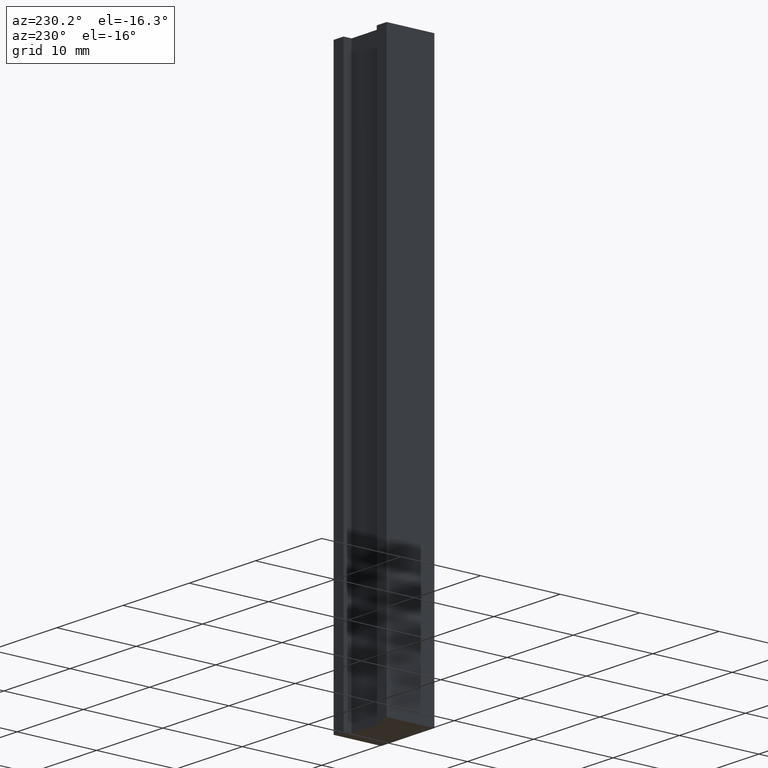
[diagram: clean part render]
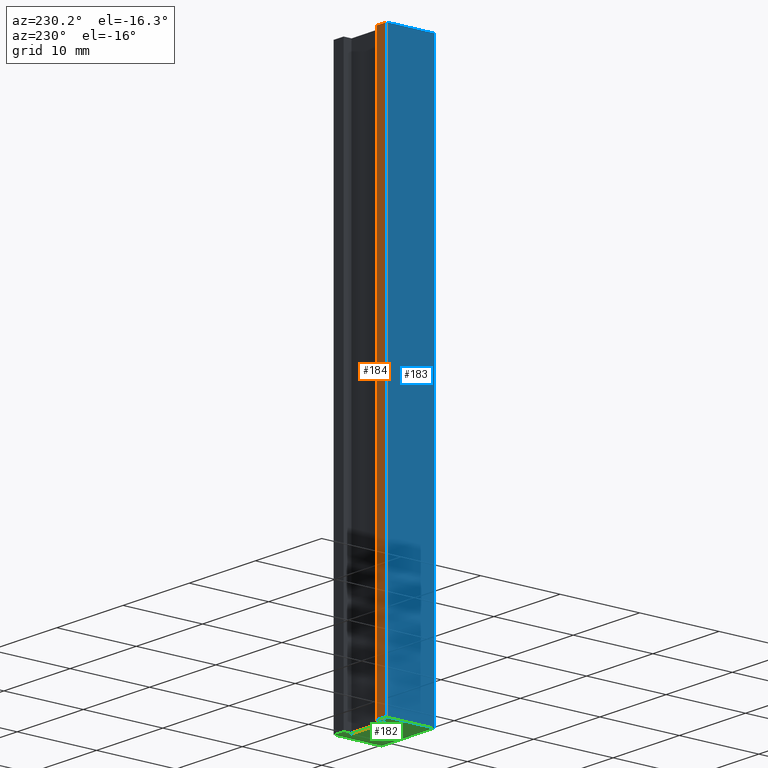
[diagram: same view with three faces highlighted in distinct colors, each labeled with its STEP entity id]
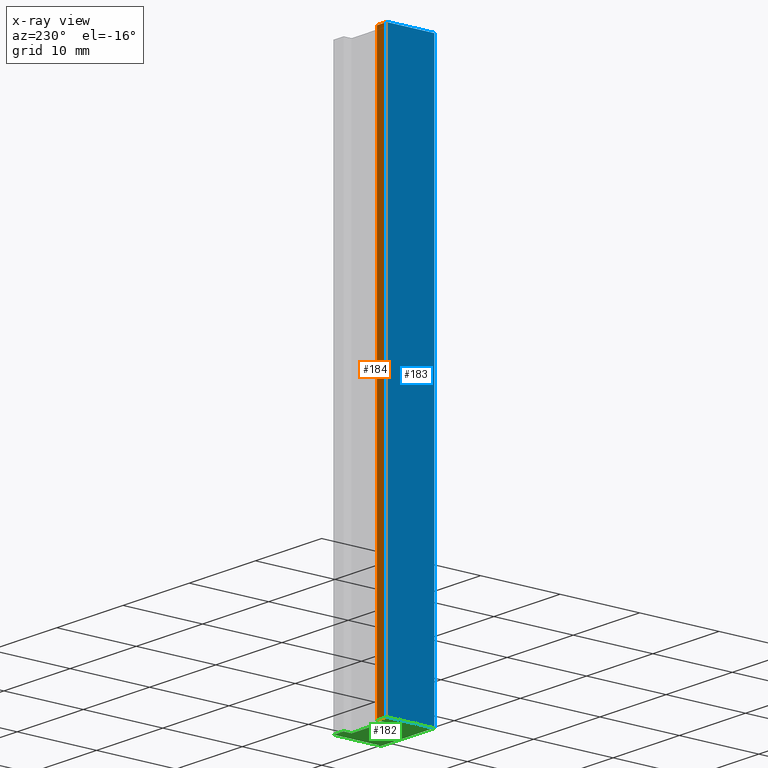
[diagram: x-ray of the same camera — body ghosted, the three highlighted faces saturated]
A machine part, auxiliary view with three faces highlighted in distinct colors.
The next image is the same camera in x-ray (body ghosted, the three faces saturated) — at least one of them is partly hidden behind the body in this view.
Their STEP definitions:

[orange] entity #184 — the highlighted planar face has unit normal (0, 1, 0).
#18=FACE_OUTER_BOUND('',#28,.T.);
#28=EDGE_LOOP('',(#136,#137,#138,#139));
#39=LINE('',#281,#63);
#45=LINE('',#293,#69);
#47=LINE('',#297,#71);
#48=LINE('',#298,#72);
#63=VECTOR('',#232,10.);
#69=VECTOR('',#240,10.);
#71=VECTOR('',#244,10.);
#72=VECTOR('',#245,10.);
#87=VERTEX_POINT('',#278);
#88=VERTEX_POINT('',#280);
#93=VERTEX_POINT('',#291);
#94=VERTEX_POINT('',#296);
#103=EDGE_CURVE('',#88,#87,#39,.T.);
#109=EDGE_CURVE('',#93,#87,#45,.T.);
#111=EDGE_CURVE('',#93,#94,#47,.T.);
#112=EDGE_CURVE('',#94,#88,#48,.T.);
#136=ORIENTED_EDGE('',*,*,#111,.T.);
#137=ORIENTED_EDGE('',*,*,#112,.T.);
#138=ORIENTED_EDGE('',*,*,#103,.T.);
#139=ORIENTED_EDGE('',*,*,#109,.F.);
#174=PLANE('',#217);
#184=ADVANCED_FACE('',(#18),#174,.T.);
#217=AXIS2_PLACEMENT_3D('',#295,#242,#243);
#232=DIRECTION('',(-1.,0.,0.));
#240=DIRECTION('',(0.,0.,-1.));
#242=DIRECTION('center_axis',(0.,1.,0.));
#243=DIRECTION('ref_axis',(0.,0.,1.));
#244=DIRECTION('',(1.,0.,0.));
#245=DIRECTION('',(0.,0.,-1.));
#278=CARTESIAN_POINT('',(-4.,3.5,-35.));
#280=CARTESIAN_POINT('',(-2.5,3.5,-35.));
#281=CARTESIAN_POINT('',(-4.,3.5,-35.));
#291=CARTESIAN_POINT('',(-4.,3.5,35.));
#293=CARTESIAN_POINT('',(-4.,3.5,0.));
#295=CARTESIAN_POINT('Origin',(-4.,3.5,0.));
#296=CARTESIAN_POINT('',(-2.5,3.5,35.));
#297=CARTESIAN_POINT('',(-4.,3.5,35.));
#298=CARTESIAN_POINT('',(-2.5,3.5,0.));

[blue] entity #183 — the highlighted planar face has unit normal (-1, 0, 0).
#17=FACE_OUTER_BOUND('',#27,.T.);
#27=EDGE_LOOP('',(#132,#133,#134,#135));
#38=LINE('',#279,#62);
#44=LINE('',#292,#68);
#45=LINE('',#293,#69);
#46=LINE('',#294,#70);
#62=VECTOR('',#231,10.);
#68=VECTOR('',#239,10.);
#69=VECTOR('',#240,10.);
#70=VECTOR('',#241,10.);
#86=VERTEX_POINT('',#276);
#87=VERTEX_POINT('',#278);
#92=VERTEX_POINT('',#290);
#93=VERTEX_POINT('',#291);
#102=EDGE_CURVE('',#87,#86,#38,.T.);
#108=EDGE_CURVE('',#92,#93,#44,.T.);
#109=EDGE_CURVE('',#93,#87,#45,.T.);
#110=EDGE_CURVE('',#92,#86,#46,.T.);
#132=ORIENTED_EDGE('',*,*,#108,.T.);
#133=ORIENTED_EDGE('',*,*,#109,.T.);
#134=ORIENTED_EDGE('',*,*,#102,.T.);
#135=ORIENTED_EDGE('',*,*,#110,.F.);
#173=PLANE('',#216);
#183=ADVANCED_FACE('',(#17),#173,.T.);
#216=AXIS2_PLACEMENT_3D('',#289,#237,#238);
#231=DIRECTION('',(0.,-1.,0.));
#237=DIRECTION('center_axis',(-1.,0.,0.));
#238=DIRECTION('ref_axis',(0.,0.,1.));
#239=DIRECTION('',(0.,1.,0.));
#240=DIRECTION('',(0.,0.,-1.));
#241=DIRECTION('',(0.,0.,-1.));
#276=CARTESIAN_POINT('',(-4.,-2.5,-35.));
#278=CARTESIAN_POINT('',(-4.,3.5,-35.));
#279=CARTESIAN_POINT('',(-4.,-2.5,-35.));
#289=CARTESIAN_POINT('Origin',(-4.,-2.5,0.));
#290=CARTESIAN_POINT('',(-4.,-2.5,35.));
#291=CARTESIAN_POINT('',(-4.,3.5,35.));
#292=CARTESIAN_POINT('',(-4.,-2.5,35.));
#293=CARTESIAN_POINT('',(-4.,3.5,0.));
#294=CARTESIAN_POINT('',(-4.,-2.5,0.));

[green] entity #182 — the highlighted planar face has unit normal (0, 0, 1).
#16=FACE_OUTER_BOUND('',#26,.T.);
#26=EDGE_LOOP('',(#124,#125,#126,#127,#128,#129,#130,#131));
#36=LINE('',#275,#60);
#37=LINE('',#277,#61);
#38=LINE('',#279,#62);
#39=LINE('',#281,#63);
#40=LINE('',#283,#64);
#41=LINE('',#285,#65);
#42=LINE('',#287,#66);
#43=LINE('',#288,#67);
#60=VECTOR('',#229,10.);
#61=VECTOR('',#230,10.);
#62=VECTOR('',#231,10.);
#63=VECTOR('',#232,10.);
#64=VECTOR('',#233,10.);
#65=VECTOR('',#234,10.);
#66=VECTOR('',#235,10.);
#67=VECTOR('',#236,10.);
#84=VERTEX_POINT('',#273);
#85=VERTEX_POINT('',#274);
#86=VERTEX_POINT('',#276);
#87=VERTEX_POINT('',#278);
#88=VERTEX_POINT('',#280);
#89=VERTEX_POINT('',#282);
#90=VERTEX_POINT('',#284);
#91=VERTEX_POINT('',#286);
#100=EDGE_CURVE('',#84,#85,#36,.T.);
#101=EDGE_CURVE('',#86,#84,#37,.T.);
#102=EDGE_CURVE('',#87,#86,#38,.T.);
#103=EDGE_CURVE('',#88,#87,#39,.T.);
#104=EDGE_CURVE('',#89,#88,#40,.T.);
#105=EDGE_CURVE('',#90,#89,#41,.T.);
#106=EDGE_CURVE('',#91,#90,#42,.T.);
#107=EDGE_CURVE('',#85,#91,#43,.T.);
#124=ORIENTED_EDGE('',*,*,#100,.F.);
#125=ORIENTED_EDGE('',*,*,#101,.F.);
#126=ORIENTED_EDGE('',*,*,#102,.F.);
#127=ORIENTED_EDGE('',*,*,#103,.F.);
#128=ORIENTED_EDGE('',*,*,#104,.F.);
#129=ORIENTED_EDGE('',*,*,#105,.F.);
#130=ORIENTED_EDGE('',*,*,#106,.F.);
#131=ORIENTED_EDGE('',*,*,#107,.F.);
#172=PLANE('',#215);
#182=ADVANCED_FACE('',(#16),#172,.F.);
#215=AXIS2_PLACEMENT_3D('',#272,#227,#228);
#227=DIRECTION('center_axis',(0.,0.,1.));
#228=DIRECTION('ref_axis',(1.,0.,0.));
#229=DIRECTION('',(0.,1.,0.));
#230=DIRECTION('',(1.,0.,0.));
#231=DIRECTION('',(0.,-1.,0.));
#232=DIRECTION('',(-1.,0.,0.));
#233=DIRECTION('',(0.,1.,0.));
#234=DIRECTION('',(-1.,0.,0.));
#235=DIRECTION('',(0.,-1.,0.));
#236=DIRECTION('',(-1.,0.,0.));
#272=CARTESIAN_POINT('Origin',(0.,0.5,-35.));
#273=CARTESIAN_POINT('',(4.,-2.5,-35.));
#274=CARTESIAN_POINT('',(4.,3.5,-35.));
#275=CARTESIAN_POINT('',(4.,3.5,-35.));
#276=CARTESIAN_POINT('',(-4.,-2.5,-35.));
#277=CARTESIAN_POINT('',(4.,-2.5,-35.));
#278=CARTESIAN_POINT('',(-4.,3.5,-35.));
#279=CARTESIAN_POINT('',(-4.,-2.5,-35.));
#280=CARTESIAN_POINT('',(-2.5,3.5,-35.));
#281=CARTESIAN_POINT('',(-4.,3.5,-35.));
#282=CARTESIAN_POINT('',(-2.5,2.5,-35.));
#283=CARTESIAN_POINT('',(-2.5,3.5,-35.));
#284=CARTESIAN_POINT('',(2.5,2.5,-35.));
#285=CARTESIAN_POINT('',(-2.5,2.5,-35.));
#286=CARTESIAN_POINT('',(2.5,3.5,-35.));
#287=CARTESIAN_POINT('',(2.5,2.5,-35.));
#288=CARTESIAN_POINT('',(2.5,3.5,-35.));